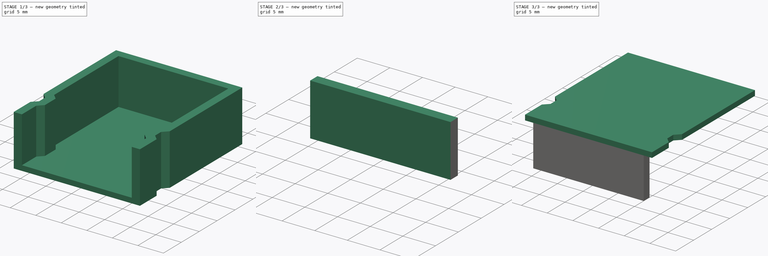
[diagram: build sequence overview — one tinted view per stage of 3, left to right]
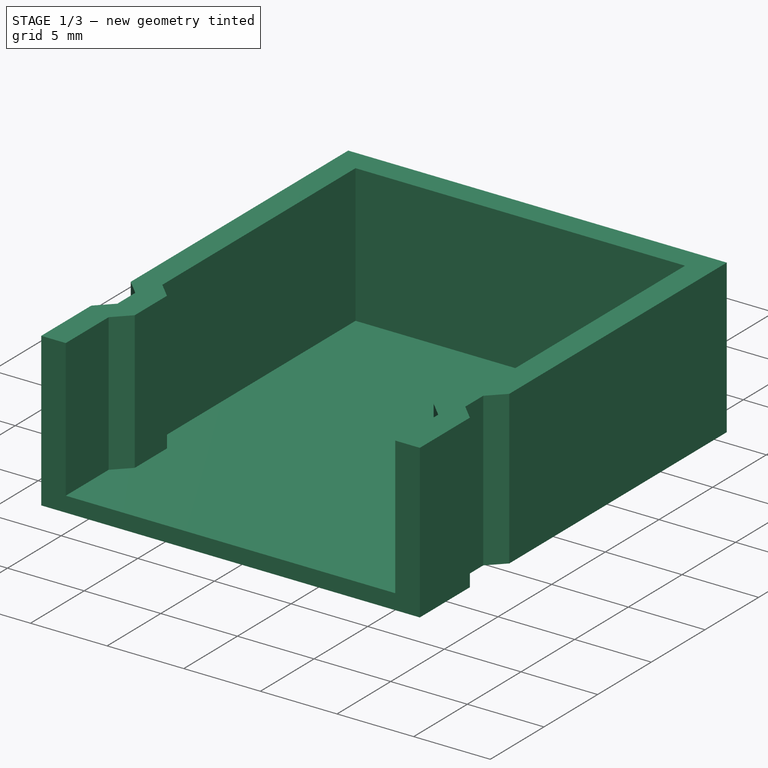
[diagram: stage 1 of 3 — iso view after this stage's code; geometry added in this stage tinted green]
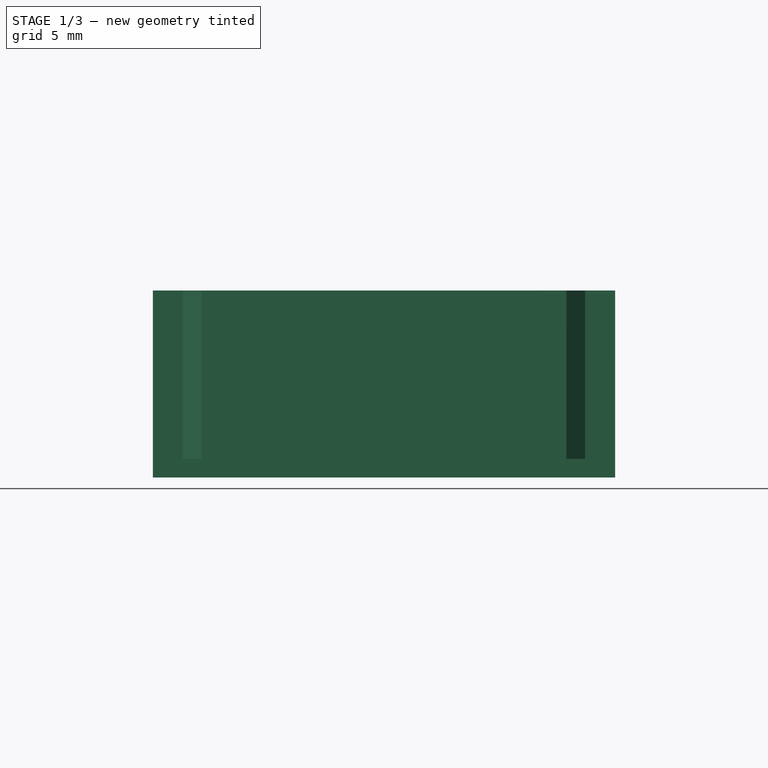
[diagram: stage 1 of 3 — front view after this stage's code; geometry added in this stage tinted green]
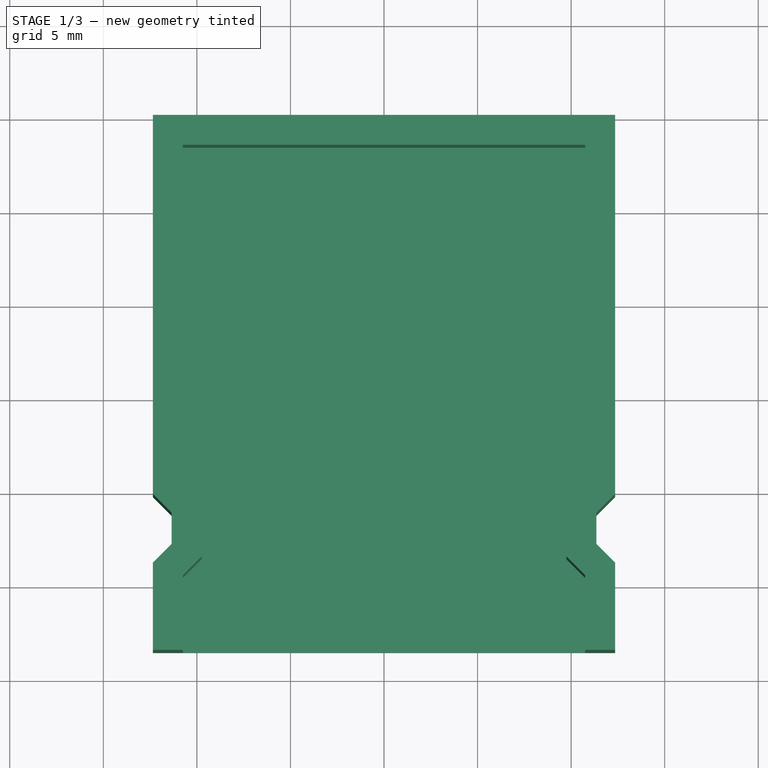
[diagram: stage 1 of 3 — top view after this stage's code; geometry added in this stage tinted green]
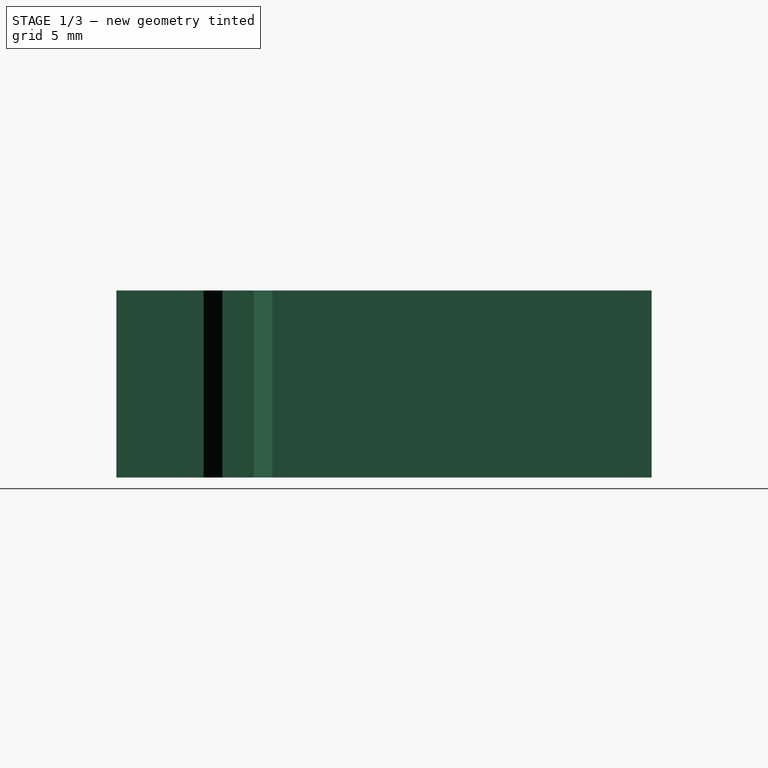
[diagram: stage 1 of 3 — right view after this stage's code; geometry added in this stage tinted green]
FCSTD DOCUMENT  (FreeCAD 1.0R39319 (Git))
Label: CoperturaSensHum
License: All rights reserved
LicenseURL: https://en.wikipedia.org/wiki/All_rights_reserved
objects: PartDesign::Pad×5, Sketcher::SketchObject×4, PartDesign::Plane×2, PartDesign::Body×2, PartDesign::Pocket×1, PartDesign::ShapeBinder×1
note: 31 computed .brp shape members not serialized (recipe doc carries the construction recipe); baked Part::Feature solids carry a one-line shape summary decoded from their .brp

FEATURE [Sketcher::SketchObject] Sketch  label="Profilo Sensore"
  ArcFitTolerance = 1e-06
  AttachmentSupport = -> [XY_Plane]
  FullyConstrained = false
  MakeInternals = false
  MapMode = 5
  sketch-geometry (13):
    g0: LineSegment StartX=-10.75 StartY=-13.5 StartZ=0 EndX=10.75 EndY=-13.5 EndZ=0
    g1: LineSegment StartX=10.75 StartY=13.5 StartZ=0 EndX=-10.75 EndY=13.5 EndZ=0
    g2: LineSegment StartX=-10.75 StartY=13.5 StartZ=0 EndX=-10.75 EndY=-4.5 EndZ=0
    g3: GeomPoint [constr] X=0 Y=0 Z=0
    g4: LineSegment StartX=10.75 StartY=-4.5 StartZ=0 EndX=10.75 EndY=13.5 EndZ=0
    g5: LineSegment StartX=10.75 StartY=-13.5 StartZ=0 EndX=10.75 EndY=-9.5 EndZ=0
    g6: LineSegment StartX=9.75 StartY=-5.5 StartZ=0 EndX=10.75 EndY=-4.5 EndZ=0
    g7: LineSegment StartX=10.75 StartY=-9.5 StartZ=0 EndX=9.75 EndY=-8.5 EndZ=0
    g8: LineSegment StartX=9.75 StartY=-8.5 StartZ=0 EndX=9.75 EndY=-5.5 EndZ=0
    g9: LineSegment StartX=-9.75 StartY=-5.5 StartZ=0 EndX=-10.75 EndY=-4.5 EndZ=0
    g10: LineSegment StartX=-10.75 StartY=-9.5 StartZ=0 EndX=-9.75 EndY=-8.5 EndZ=0
    g11: LineSegment StartX=-9.75 StartY=-8.5 StartZ=0 EndX=-9.75 EndY=-5.5 EndZ=0
    g12: LineSegment StartX=-10.75 StartY=-9.5 StartZ=0 EndX=-10.75 EndY=-13.5 EndZ=0
  constraints (39):
    c: Coincident(g0,g5)
    c: Coincident(g4,g1)
    c: Coincident(g1,g2)
    c: Coincident(g12,g0)
    c: Horizontal(g0)
    c: Horizontal(g1)
    c: Vertical(g2)
    c: Symmetric(g1,g0,g3)
    c: Distance(g5,g12) = 21.5
    c: Distance(g0,g1) = 27
    c: Coincident(g3,g-1)
    c: Coincident(g6,g4)
    c: Vertical(g4)
    c: Coincident(g5,g7)
    c: Vertical(g5)
    c: Coincident(g8,g6)
    c: Vertical(g6)
    c: Coincident(g7,g8)
    c: Vertical(g7)
    c: Vertical(g8)
    c: DistanceY(g5,g4) = 5
    c: DistanceY(g7,g6) = 3
    c: Equal(g6,g7)
    c: DistanceX(g6,g6) = 1
    c: Equal(g0,g1)
    c: DistanceY(g4,g1) = 18
    c: Coincident(g11,g9)
    c: Vertical(g9)
    c: Coincident(g10,g11)
    c: Vertical(g10)
    c: Vertical(g11)
    c: Equal(g9,g10)
    c: PointOnObject(g2,g9)
    c: PointOnObject(g12,g10)
    c: Equal(g11,g8)
    c: Equal(g9,g6)
    c: Equal(g2,g4)
    c: Equal(g12,g5)
    c: Vertical(g12)
FEATURE [Sketcher::SketchObject] Sketch001
  ArcFitTolerance = 1e-06
  AttachmentSupport = -> [XY_Plane]
  FullyConstrained = false
  MakeInternals = false
  MapMode = 2
  sketch-geometry (24):
    g0: LineSegment StartX=-10.75 StartY=13.5 StartZ=0 EndX=10.75 EndY=13.5 EndZ=0
    g1: LineSegment StartX=10.75 StartY=13.5 StartZ=0 EndX=10.75 EndY=-4.5 EndZ=0
    g2: LineSegment StartX=10.75 StartY=-4.5 StartZ=0 EndX=9.75 EndY=-5.5 EndZ=0
    g3: LineSegment StartX=9.75 StartY=-5.5 StartZ=0 EndX=9.75 EndY=-8.5 EndZ=0
    g4: LineSegment StartX=9.75 StartY=-8.5 StartZ=0 EndX=10.75 EndY=-9.5 EndZ=0
    g5: LineSegment StartX=10.75 StartY=-9.5 StartZ=0 EndX=10.75 EndY=-13.5 EndZ=0
    g6: LineSegment StartX=-10.75 StartY=-13.5 StartZ=0 EndX=-10.75 EndY=-9.5 EndZ=0
    g7: LineSegment StartX=-10.75 StartY=-9.5 StartZ=0 EndX=-9.75 EndY=-8.5 EndZ=0
    g8: LineSegment StartX=-9.75 StartY=-8.5 StartZ=0 EndX=-9.75 EndY=-5.5 EndZ=0
    g9: LineSegment StartX=-9.75 StartY=-5.5 StartZ=0 EndX=-10.75 EndY=-4.5 EndZ=0
    g10: LineSegment StartX=-10.75 StartY=-4.5 StartZ=0 EndX=-10.75 EndY=13.5 EndZ=0
    g11: LineSegment StartX=-12.35 StartY=-13.5 StartZ=0 EndX=-12.35 EndY=-8.83726 EndZ=0
    g12: LineSegment StartX=-12.35 StartY=-8.83726 StartZ=0 EndX=-11.35 EndY=-7.83726 EndZ=0
    g13: LineSegment StartX=-11.35 StartY=-7.83726 StartZ=0 EndX=-11.35 EndY=-6.16274 EndZ=0
    g14: LineSegment StartX=-11.35 StartY=-6.16274 StartZ=0 EndX=-12.35 EndY=-5.16274 EndZ=0
    g15: LineSegment StartX=-12.35 StartY=-5.16274 StartZ=0 EndX=-12.35 EndY=15.1 EndZ=0
    g16: LineSegment StartX=-12.35 StartY=15.1 StartZ=0 EndX=12.35 EndY=15.1 EndZ=0
    g17: LineSegment StartX=12.35 StartY=15.1 StartZ=0 EndX=12.35 EndY=-5.16274 EndZ=0
    g18: LineSegment StartX=12.35 StartY=-5.16274 StartZ=0 EndX=11.35 EndY=-6.16274 EndZ=0
    g19: LineSegment StartX=11.35 StartY=-6.16274 StartZ=0 EndX=11.35 EndY=-7.83726 EndZ=0
    g20: LineSegment StartX=11.35 StartY=-7.83726 StartZ=0 EndX=12.35 EndY=-8.83726 EndZ=0
    g21: LineSegment StartX=12.35 StartY=-8.83726 StartZ=0 EndX=12.35 EndY=-13.5 EndZ=0
    g22: LineSegment StartX=-12.35 StartY=-13.5 StartZ=0 EndX=-10.75 EndY=-13.5 EndZ=0
    g23: LineSegment StartX=10.75 StartY=-13.5 StartZ=0 EndX=12.35 EndY=-13.5 EndZ=0
  constraints (47):
    c: Coincident(g0,g1)
    c: Coincident(g1,g2)
    c: Coincident(g2,g3)
    c: Coincident(g3,g4)
    c: Coincident(g4,g5)
    c: Coincident(g6,g7)
    c: Coincident(g7,g8)
    c: Coincident(g8,g9)
    c: Coincident(g9,g10)
    c: Coincident(g10,g0)
    c: DistanceY(g8,g8) = 3
    c: DistanceY(g8,g9) = 1
    c: Distance(g1,g10) = 21.5
    c: Vertical(g10)
    c: Vertical(g1)
    c: Vertical(g3)
    c: Vertical(g5)
    c: Vertical(g6)
    c: Vertical(g8)
    c: Distance(g5,g6) = 21.5
    c: DistanceY(g9,g0) = 18
    c: DistanceY(g6,g9) = 5
    c: DistanceY(g6,g6) = 4
    c: Coincident(g11,g12)
    c: Coincident(g12,g13)
    c: Coincident(g13,g14)
    c: Coincident(g14,g15)
    c: Coincident(g15,g16)
    c: Coincident(g16,g17)
    c: Coincident(g17,g18)
    c: Coincident(g18,g19)
    c: Coincident(g19,g20)
    c: Coincident(g20,g21)
    c: Coincident(g22,g11)
    c: Coincident(g22,g6)
    c: Horizontal(g22)
    c: Coincident(g23,g5)
    c: Coincident(g23,g21)
    c: Horizontal(g23)
    c: Distance(g10,g15) = 1.6
    c: Distance(g17,g1) = 1.6
    c: Distance(g21,g5) = 1.6
    c: Distance(g6,g11) = 1.6
    c: Distance(g8,g13) = 1.6
    c: Distance(g19,g3) = 1.6
    c: Symmetric(g0,g0,g-2)
    c: Symmetric(g15,g16,g-2)
FEATURE [PartDesign::Pad] Pad
  Direction = (0,0,1)
  Length = 10
  Length2 = 10
  Profile = -> Sketch001
  ReferenceAxis = -> Sketch001 [N_Axis]
  Refine = true
  Suppressed = false
  Type = 0
FEATURE [PartDesign::Pad] Pad001
  BaseFeature = -> Pad
  Direction = (0,0,1)
  Length = 1
  Length2 = 10
  Profile = -> Sketch
  ReferenceAxis = -> Sketch [N_Axis]
  Refine = true
  Suppressed = false
  Type = 0
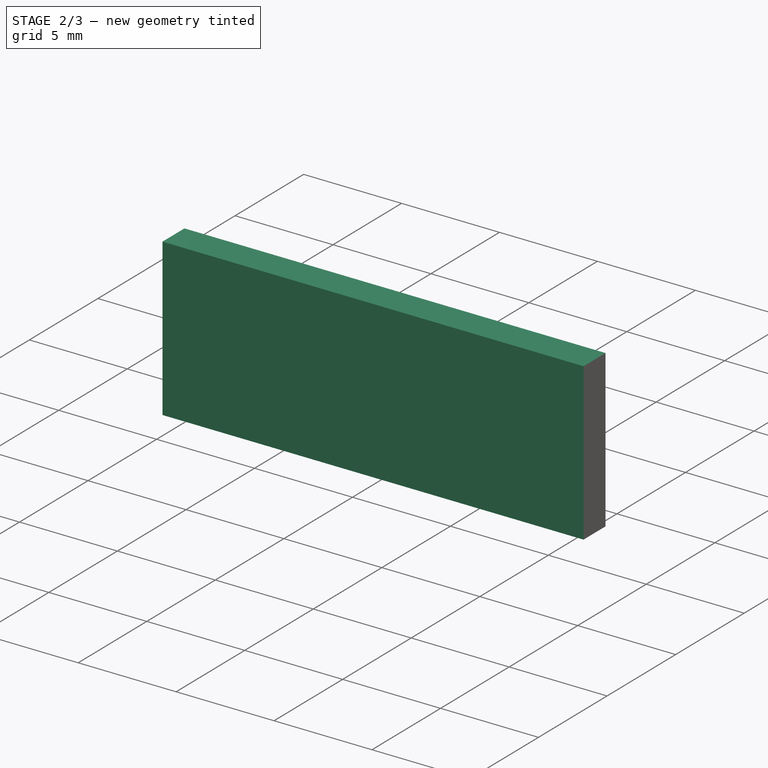
[diagram: stage 2 of 3 — iso view after this stage's code; geometry added in this stage tinted green]
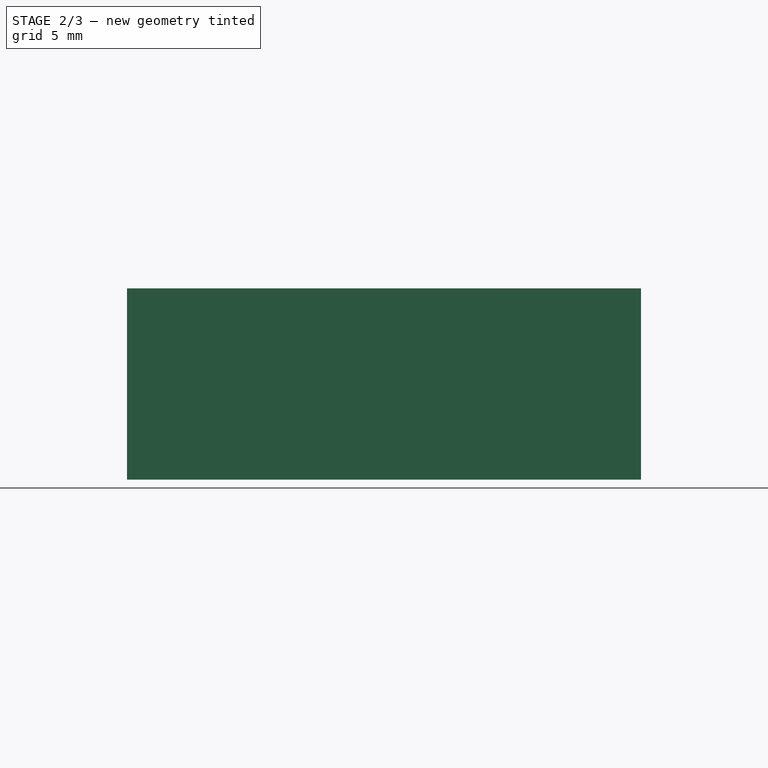
[diagram: stage 2 of 3 — front view after this stage's code; geometry added in this stage tinted green]
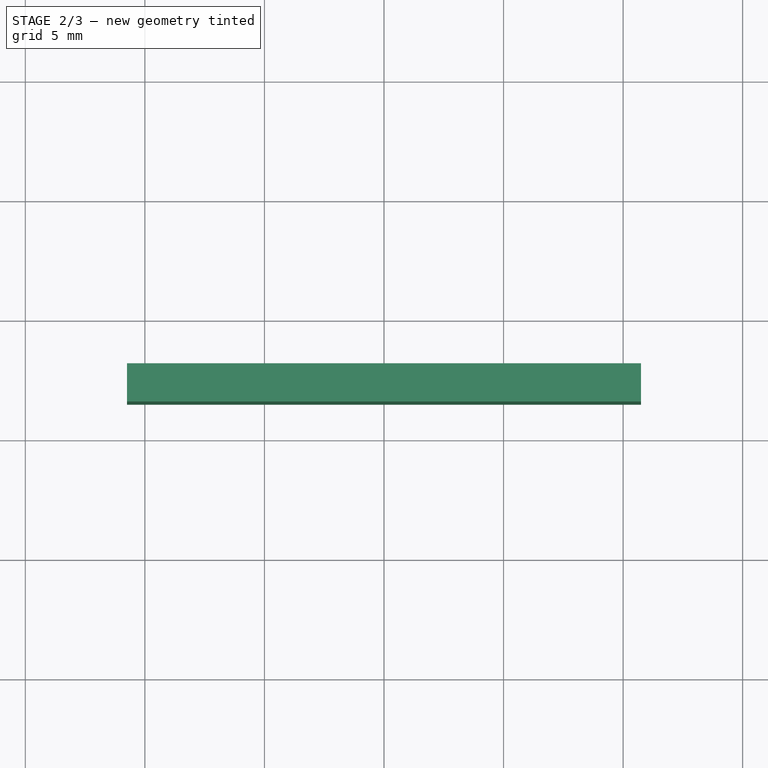
[diagram: stage 2 of 3 — top view after this stage's code; geometry added in this stage tinted green]
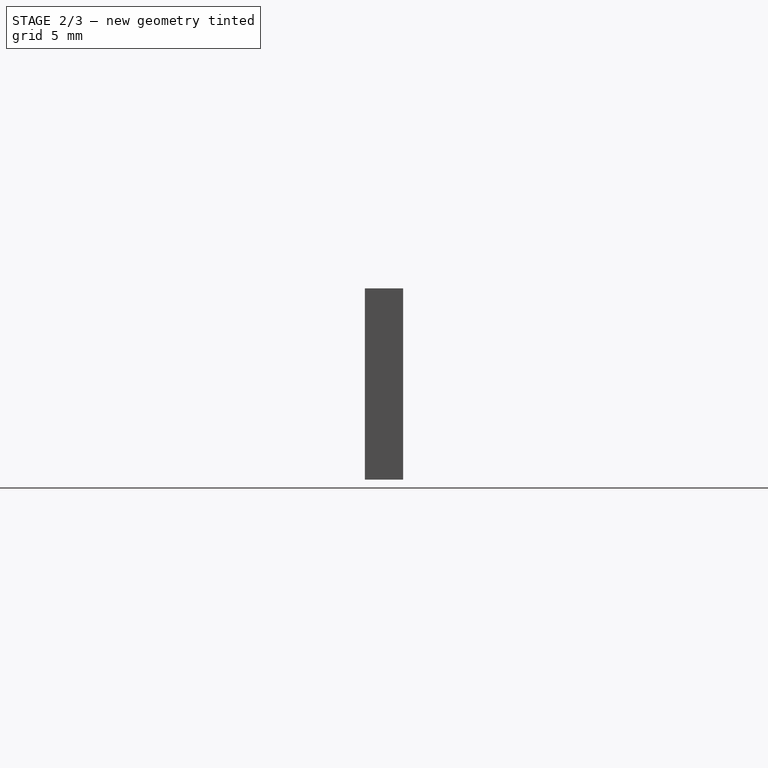
[diagram: stage 2 of 3 — right view after this stage's code; geometry added in this stage tinted green]
FEATURE [Sketcher::SketchObject] Sketch002
  ArcFitTolerance = 1e-06
  AttachmentSupport = -> [Pad001]
  ExternalGeometry = -> [Pad001]
  FullyConstrained = true
  MakeInternals = false
  MapMode = 5
  Placement = pos=(0,13.5,0) rot=(1,0,0;1.5708rad)
  sketch-geometry (5):
    g0: GeomPoint [constr] X=0 Y=2 Z=0
    g1: LineSegment StartX=-5 StartY=2 StartZ=0 EndX=5 EndY=2 EndZ=0
    g2: LineSegment StartX=-5 StartY=2 StartZ=0 EndX=-5 EndY=9 EndZ=0
    g3: LineSegment StartX=-5 StartY=9 StartZ=0 EndX=5 EndY=9 EndZ=0
    g4: LineSegment StartX=5 StartY=9 StartZ=0 EndX=5 EndY=2 EndZ=0
  constraints (13):
    c: PointOnObject(g0,g-2)
    c: PointOnObject(g0,g1)
    c: Symmetric(g1,g1,g-2)
    c: DistanceX(g1,g1) = 10
    c: Coincident(g1,g2)
    c: Vertical(g2)
    c: Coincident(g2,g3)
    c: Horizontal(g3)
    c: Coincident(g3,g4)
    c: Coincident(g4,g1)
    c: Vertical(g4)
    c: Distance(g1,g3) = 7
    c: Distance(g-3,g3) = 1
FEATURE [PartDesign::Pocket] Pocket
  BaseFeature = -> Pad001
  Direction = (0,1,-2e-16)
  Length = 5
  Length2 = 5
  Profile = -> Sketch002
  ReferenceAxis = -> Sketch002 [N_Axis]
  Refine = true
  Suppressed = false
  Type = 0
FEATURE [PartDesign::Plane] DatumPlane
  AttachmentSupport = -> [Pocket]
  Length = 60
  MapMode = 5
  Placement = pos=(0,13.5,0) rot=(1,0,0;1.5708rad)
  ResizeMode = 0
  Width = 60
FEATURE [PartDesign::Body] Body  label="Copertura Principale"
  AllowCompound = false
  Group = -> [Sketch,Sketch001,Pad,Pad001,Sketch002,Pocket,DatumPlane]
  Origin = -> Origin
  Tip = -> Pocket
FEATURE [PartDesign::ShapeBinder] CopyPocket
  Placement = pos=(0,0,10) rot=(0,0,1;0rad)
  TraceSupport = false
FEATURE [PartDesign::Plane] DatumPlane001
  AttachmentSupport = -> [CopyPocket]
  Length = 60
  MapMode = 5
  Placement = pos=(0,0,10) rot=(0,0,1;0rad)
  ResizeMode = 0
  Width = 60
FEATURE [Sketcher::SketchObject] Sketch003
  ArcFitTolerance = 1e-06
  AttachmentSupport = -> [DatumPlane001]
  ExternalGeometry = -> [Pocket]
  FullyConstrained = true
  MakeInternals = false
  MapMode = 5
  Placement = pos=(0,0,10) rot=(0,0,1;0rad)
  sketch-geometry (17):
    g0: LineSegment StartX=-10.75 StartY=-13.5 StartZ=0 EndX=10.75 EndY=-13.5 EndZ=0
    g1: LineSegment StartX=10.75 StartY=-13.5 StartZ=0 EndX=12.35 EndY=-13.5 EndZ=0
    g2: LineSegment StartX=12.35 StartY=-13.5 StartZ=0 EndX=12.35 EndY=-8.83726 EndZ=0
    g3: LineSegment StartX=12.35 StartY=-8.83726 StartZ=0 EndX=11.35 EndY=-7.83726 EndZ=0
    g4: LineSegment StartX=11.35 StartY=-7.83726 StartZ=0 EndX=11.35 EndY=-6.16274 EndZ=0
    g5: LineSegment StartX=11.35 StartY=-6.16274 StartZ=0 EndX=12.35 EndY=-5.16274 EndZ=0
    g6: LineSegment StartX=12.35 StartY=-5.16274 StartZ=0 EndX=12.35 EndY=15.1 EndZ=0
    g7: LineSegment StartX=12.35 StartY=15.1 StartZ=0 EndX=-12.35 EndY=15.1 EndZ=0
    g8: LineSegment StartX=-12.35 StartY=15.1 StartZ=0 EndX=-12.35 EndY=-5.16274 EndZ=0
    g9: LineSegment StartX=-12.35 StartY=-5.16274 StartZ=0 EndX=-11.35 EndY=-6.16274 EndZ=0
    g10: LineSegment StartX=-11.35 StartY=-6.16274 StartZ=0 EndX=-11.35 EndY=-7.83726 EndZ=0
    g11: LineSegment StartX=-11.35 StartY=-7.83726 StartZ=0 EndX=-12.35 EndY=-8.83726 EndZ=0
    g12: LineSegment StartX=-12.35 StartY=-8.83726 StartZ=0 EndX=-12.35 EndY=-13.5 EndZ=0
    g13: LineSegment StartX=-12.35 StartY=-13.5 StartZ=0 EndX=-10.75 EndY=-13.5 EndZ=0
    g14: LineSegment StartX=-10.75 StartY=-13.5 StartZ=0 EndX=-10.75 EndY=-11.9 EndZ=0
    g15: LineSegment StartX=-10.75 StartY=-11.9 StartZ=0 EndX=10.75 EndY=-11.9 EndZ=0
    g16: LineSegment StartX=10.75 StartY=-11.9 StartZ=0 EndX=10.75 EndY=-13.5 EndZ=0
  constraints (36):
    c: Coincident(g-14,g0)
    c: Coincident(g0,g-15)
    c: Coincident(g0,g1)
    c: Coincident(g1,g-15)
    c: Coincident(g1,g2)
    c: Coincident(g2,g-9)
    c: Coincident(g2,g3)
    c: Coincident(g3,g-8)
    c: Coincident(g3,g4)
    c: Coincident(g4,g-7)
    c: Coincident(g4,g5)
    c: Coincident(g5,g-6)
    c: Coincident(g5,g6)
    c: Coincident(g6,g-5)
    c: Coincident(g6,g7)
    c: Coincident(g7,g-4)
    c: Coincident(g7,g8)
    c: Coincident(g8,g-10)
    c: Coincident(g8,g9)
    c: Coincident(g9,g-11)
    c: Coincident(g9,g10)
    c: Coincident(g10,g-12)
    c: Coincident(g10,g11)
    c: Coincident(g11,g-13)
    c: Coincident(g11,g12)
    c: Coincident(g12,g-14)
    c: Coincident(g12,g13)
    c: Coincident(g13,g14)
    c: Vertical(g14)
    c: Coincident(g14,g15)
    c: Horizontal(g15)
    c: Coincident(g15,g16)
    c: Coincident(g16,g0)
    c: Vertical(g16)
    c: Coincident(g13,g0)
    c: Distance(g0,g15) = 1.6
FEATURE [PartDesign::Pad] Pad002
  Direction = (0,0,1)
  Length = 8
  Length2 = 10
  Placement = pos=(0,0,10) rot=(0,0,1;0rad)
  Profile = -> Sketch003 [Vertex2,Edge17,Vertex16,Edge16,Vertex15,Edge15,Vertex1,Edge1]
  ReferenceAxis = -> Sketch003 [N_Axis]
  Refine = true
  Reversed = true
  Suppressed = false
  Type = 0
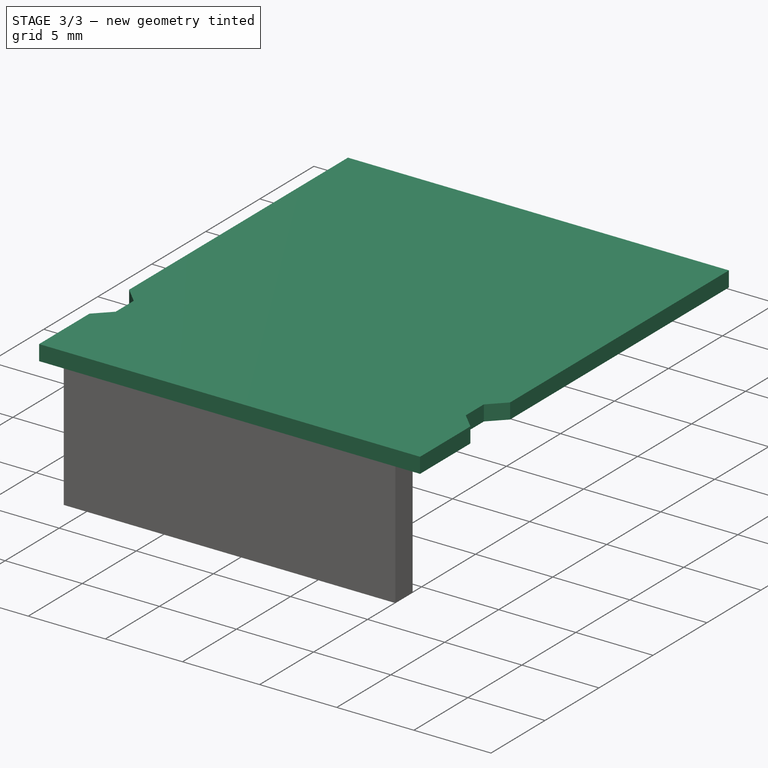
[diagram: stage 3 of 3 — iso view after this stage's code; geometry added in this stage tinted green]
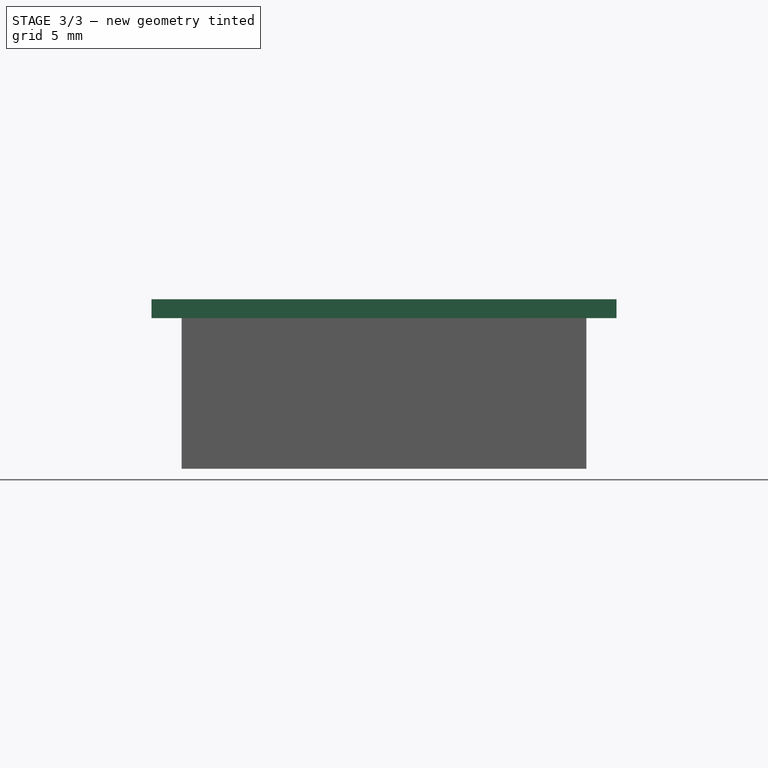
[diagram: stage 3 of 3 — front view after this stage's code; geometry added in this stage tinted green]
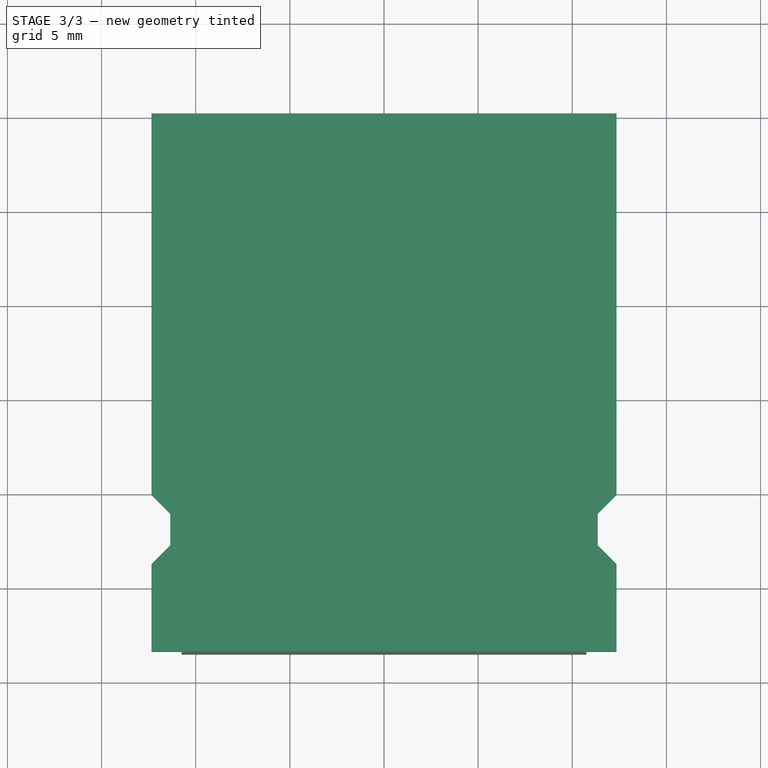
[diagram: stage 3 of 3 — top view after this stage's code; geometry added in this stage tinted green]
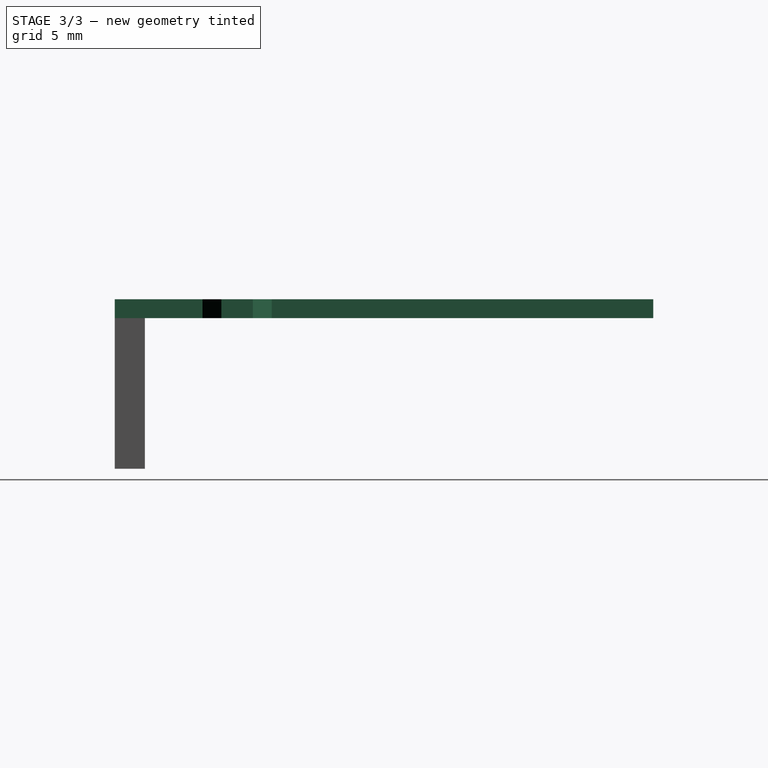
[diagram: stage 3 of 3 — right view after this stage's code; geometry added in this stage tinted green]
FEATURE [PartDesign::Pad] Pad003
  BaseFeature = -> Pad002
  Direction = (0,0,1)
  Length = 1
  Length2 = 10
  Placement = pos=(0,0,10) rot=(0,0,1;0rad)
  Profile = -> Sketch003 [Edge14,Vertex1,Edge15,Vertex15,Edge16,Vertex16,Edge17,Vertex2,Edge2,Vertex3,Edge3,Vertex4,Edge4,Vertex5,Edge5,Vertex6,Edge6,Vertex7,Vertex14,Edge13,Vertex13,Edge12,Vertex12,Edge11,Vertex11,Edge10,Vertex10,Edge9,Vertex9,Edge8,Vertex8,Edge7]
  ReferenceAxis = -> Sketch003 [N_Axis]
  Refine = true
  Suppressed = false
  Type = 0
FEATURE [PartDesign::Pad] Pad004
  BaseFeature = -> Pad003
  Direction = (0,0,1)
  Length = 1
  Length2 = 10
  Placement = pos=(0,0,10) rot=(0,0,1;0rad)
  Profile = -> Sketch003 [Vertex1,Edge15,Vertex15,Edge16,Vertex16,Edge17,Vertex2,Edge1]
  ReferenceAxis = -> Sketch003 [N_Axis]
  Refine = true
  Suppressed = false
  Type = 0
FEATURE [PartDesign::Body] Body001  label="Copertura alta"
  AllowCompound = true
  Group = -> [DatumPlane001,CopyPocket,Sketch003,Pad002,Pad003,Pad004]
  Origin = -> Origin001
  Tip = -> Pad004
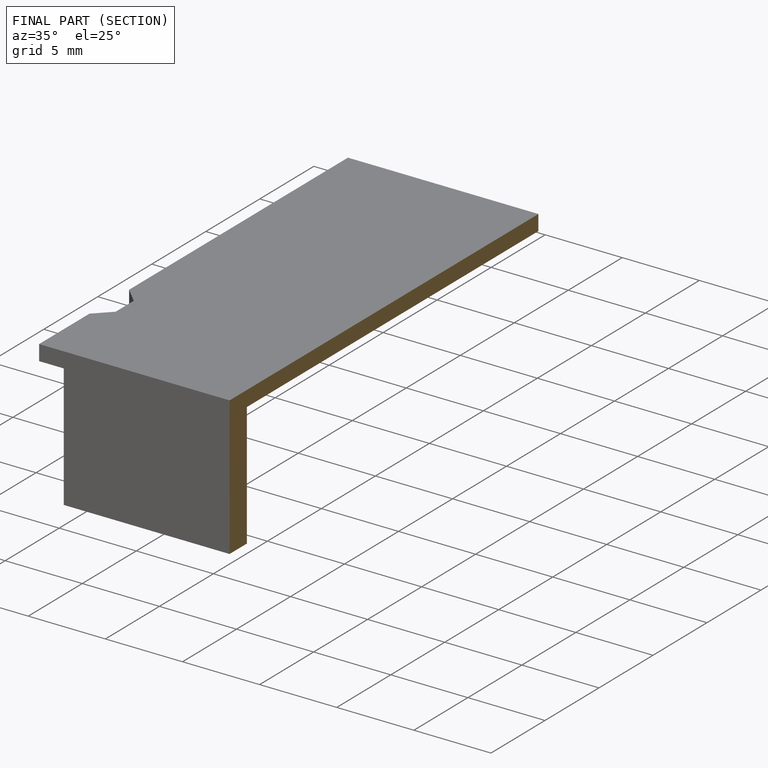
[diagram: finished part — half-section view (interior)]
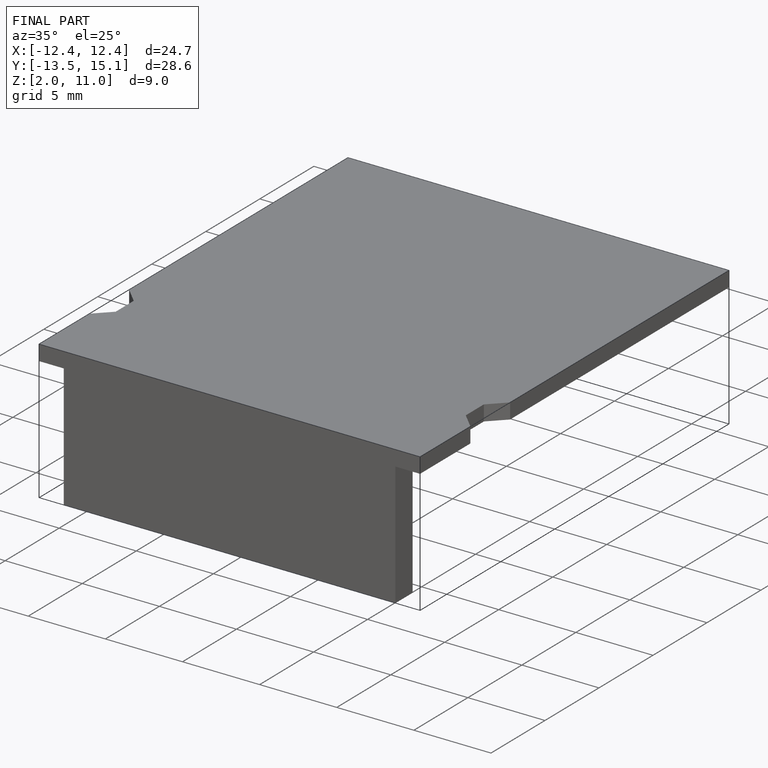
[diagram: finished part — iso view with bounding-box wireframe]
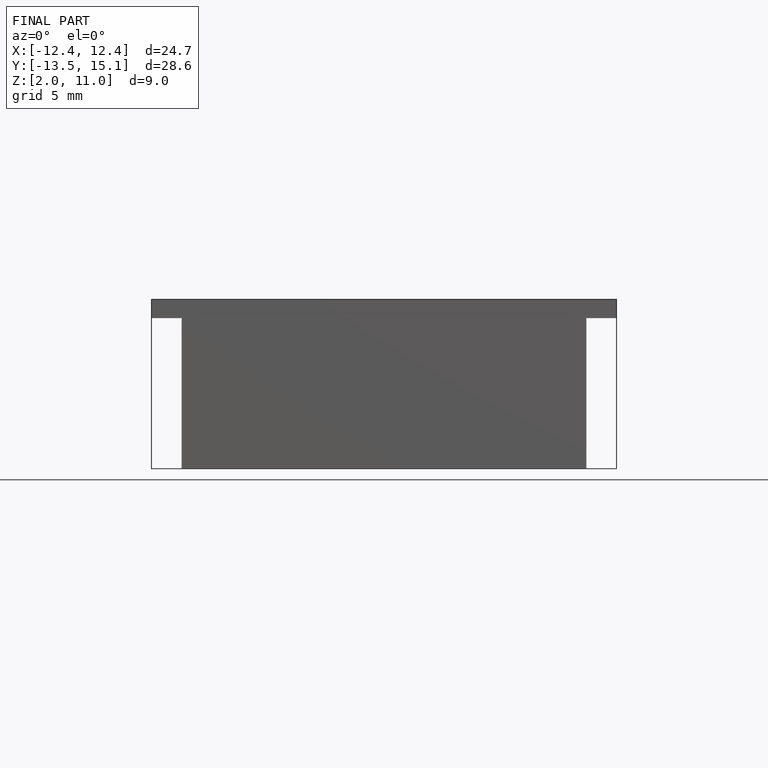
[diagram: finished part — front view with bounding-box wireframe]
